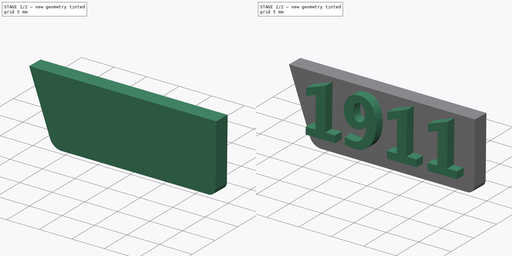
[diagram: build sequence overview — one tinted view per stage of 2, left to right]
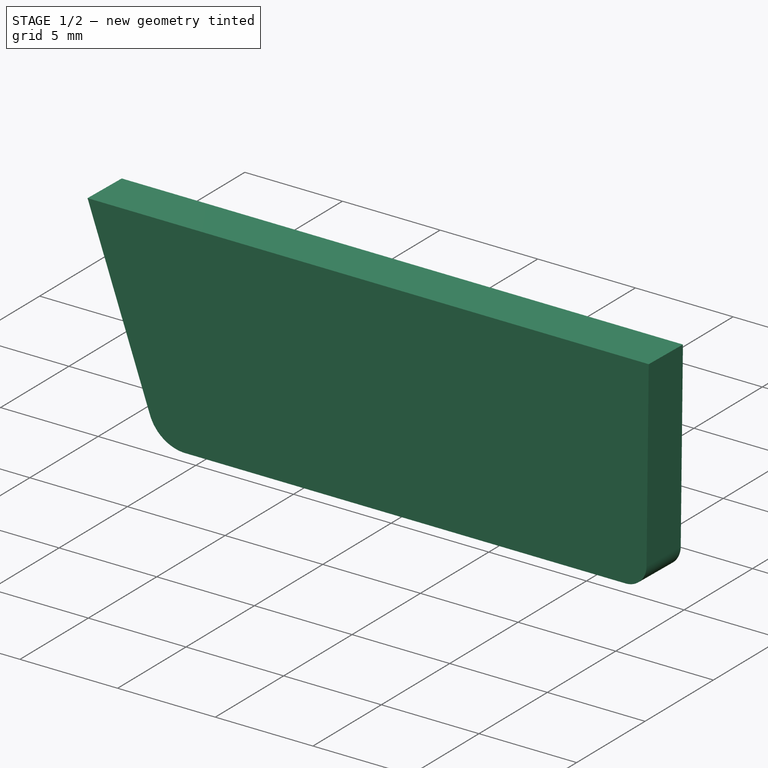
[diagram: stage 1 of 2 — iso view after this stage's code; geometry added in this stage tinted green]
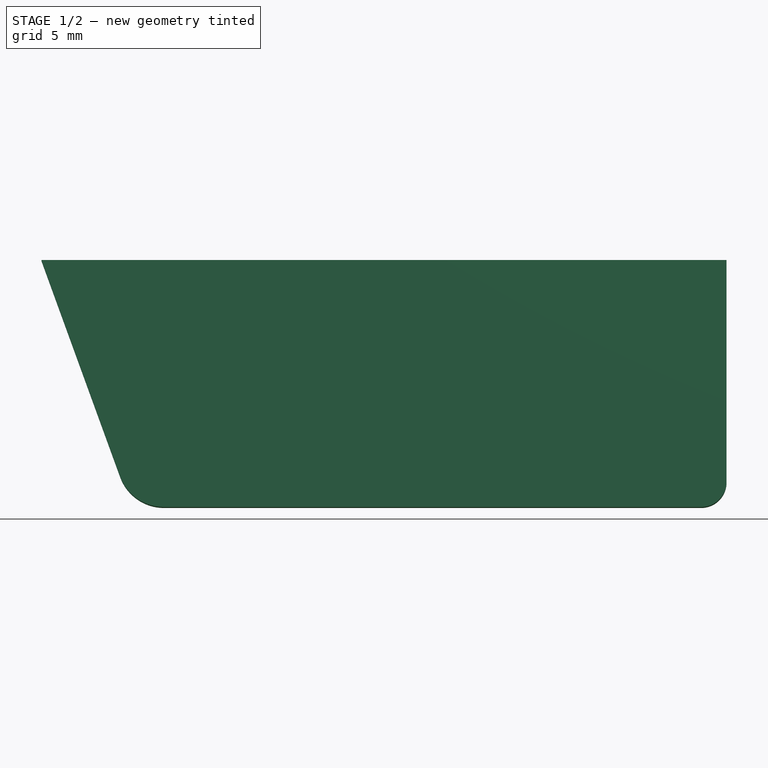
[diagram: stage 1 of 2 — front view after this stage's code; geometry added in this stage tinted green]
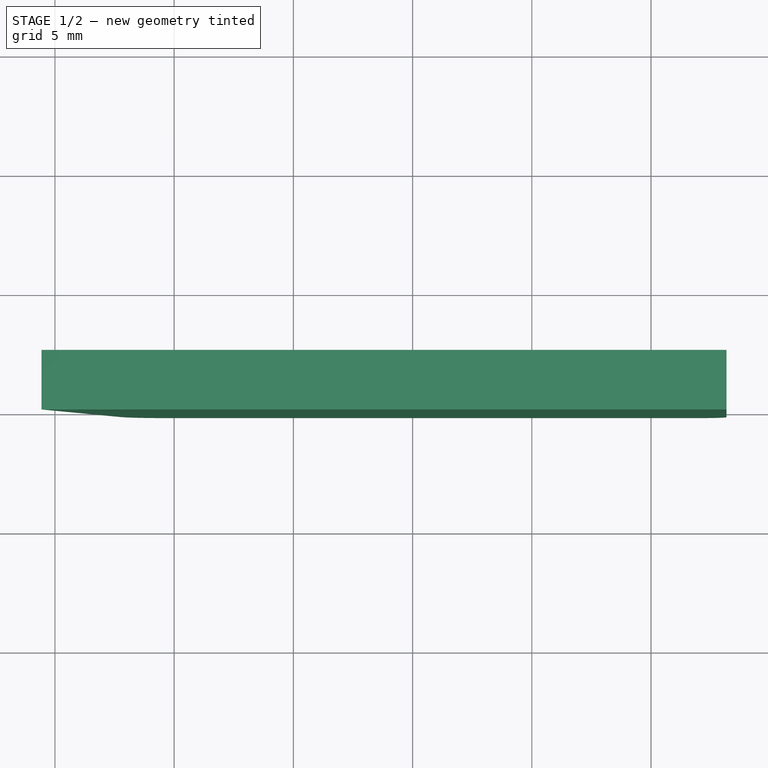
[diagram: stage 1 of 2 — top view after this stage's code; geometry added in this stage tinted green]
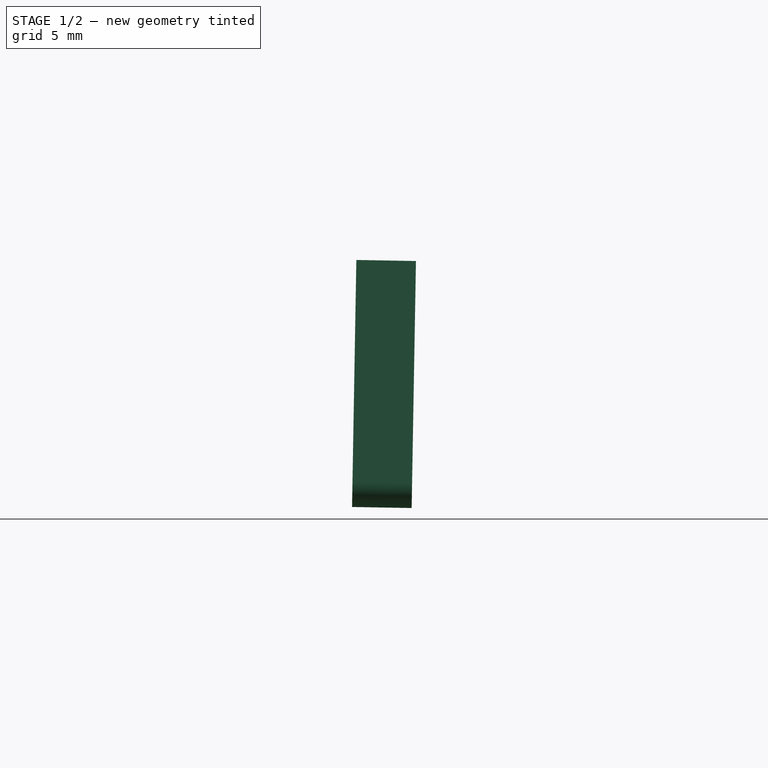
[diagram: stage 1 of 2 — right view after this stage's code; geometry added in this stage tinted green]
FCSTD DOCUMENT  (FreeCAD 0.16R6703 (Git))
Label: Magazine Bumper Pad 15mm - v2 - Corte Dir
License: FreeArt
LicenseURL: http://artlibre.org/licence/lal
objects: Sketcher::SketchObject×2, PartDesign::Pad×2, Part::Part2DObjectPython×1, PartDesign::Pocket×1, Part::MultiFuse×1
note: 10 computed .brp shape members not serialized (recipe doc carries the construction recipe); baked Part::Feature solids carry a one-line shape summary decoded from their .brp

FEATURE [Sketcher::SketchObject] Sketch005
  Placement = pos=(0,6.3,0) rot=(1,0,0;1.55334rad)
  sketch-geometry (6):
    g0: LineSegment StartX=-17.1109 StartY=3.21058 StartZ=0 EndX=13.1674 EndY=3.21058 EndZ=0
    g1: LineSegment StartX=13.1674 StartY=3.21058 StartZ=0 EndX=13.1674 EndY=-10.333 EndZ=0
    g2: LineSegment StartX=12.1055 StartY=-11.3949 StartZ=0 EndX=-10.4303 EndY=-11.3949 EndZ=0
    g3: LineSegment StartX=-12.2617 StartY=-10.1125 StartZ=0 EndX=-17.1109 EndY=3.21058 EndZ=0
    g4: ArcOfCircle CenterX=-10.4303 CenterY=-9.44595 CenterZ=0 NormalX=0 NormalY=0 NormalZ=1 Radius=1.94895 StartAngle=3.49066 EndAngle=4.71239
    g5: ArcOfCircle CenterX=12.1055 CenterY=-10.333 CenterZ=0 NormalX=0 NormalY=0 NormalZ=1 Radius=1.06187 StartAngle=4.71239 EndAngle=6.28319
  constraints (13):
    c: Coincident(g0,g1)
    c: Coincident(g3,g0)
    c: Horizontal(g0)
    c: Horizontal(g2)
    c: Vertical(g1)
    c: Tangent(g3,g4) = 1.5708
    c: Tangent(g2,g4) = 1.5708
    c: Tangent(g2,g5) = 1.5708
    c: Tangent(g1,g5) = 1.5708
    c: Angle(g2,g3) = 1.91986
    c: Distance(g0) = 30.2783
    c: Distance(g2) = 22.5358
    c: Distance(g-1,g2) = 11.3949
FEATURE [PartDesign::Pad] Pad001  label="Corte da Esquerda"
  Length = 2.5
  Length2 = 100
  Midplane = true
  Placement = pos=(0,6.3,0) rot=(1,0,0;1.55334rad)
  Sketch = -> Sketch005
  Type = 0
FEATURE [Sketcher::SketchObject] Sketch
  Placement = pos=(0,5.05019,0.0218155) rot=(1,0,0;1.55334rad)
  Support = -> Pad001 [Face8]
  sketch-geometry (4):
    g0: LineSegment StartX=-19.1705 StartY=6.03861 StartZ=0 EndX=18.4539 EndY=6.03861 EndZ=0
    g1: LineSegment StartX=18.4539 StartY=6.03861 StartZ=0 EndX=18.4539 EndY=-1.03382 EndZ=0
    g2: LineSegment StartX=18.4539 StartY=-1.03382 StartZ=0 EndX=-19.1705 EndY=-1.03382 EndZ=0
    g3: LineSegment StartX=-19.1705 StartY=-1.03382 StartZ=0 EndX=-19.1705 EndY=6.03861 EndZ=0
  constraints (8):
    c: Coincident(g0,g1)
    c: Coincident(g1,g2)
    c: Coincident(g2,g3)
    c: Coincident(g3,g0)
    c: Horizontal(g0)
    c: Horizontal(g2)
    c: Vertical(g1)
    c: Vertical(g3)
FEATURE [PartDesign::Pocket] Pocket
  Length = 5
  Placement = pos=(0,6.3,0) rot=(1,0,0;1.55334rad)
  Sketch = -> Sketch
  Type = 1
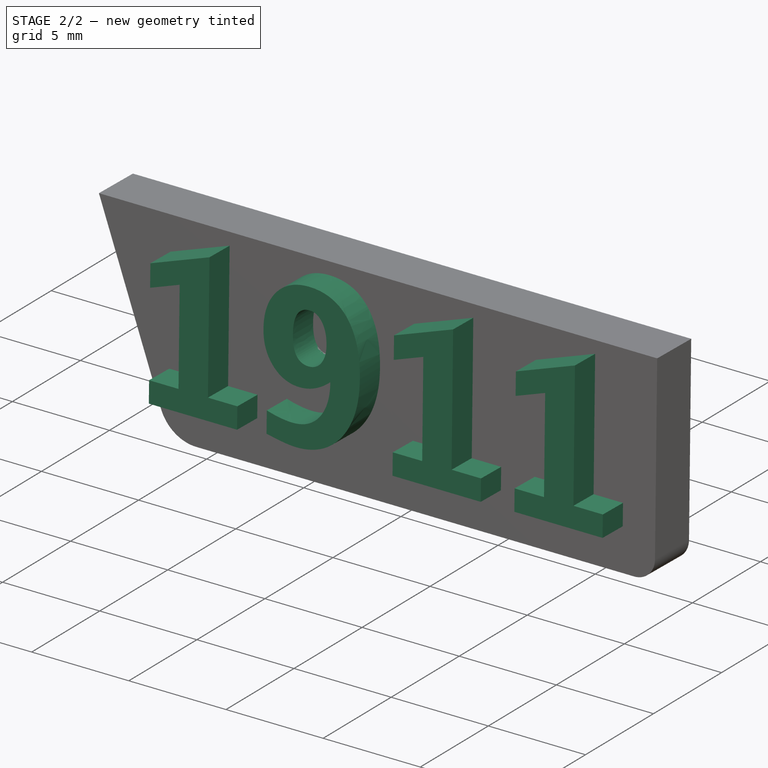
[diagram: stage 2 of 2 — iso view after this stage's code; geometry added in this stage tinted green]
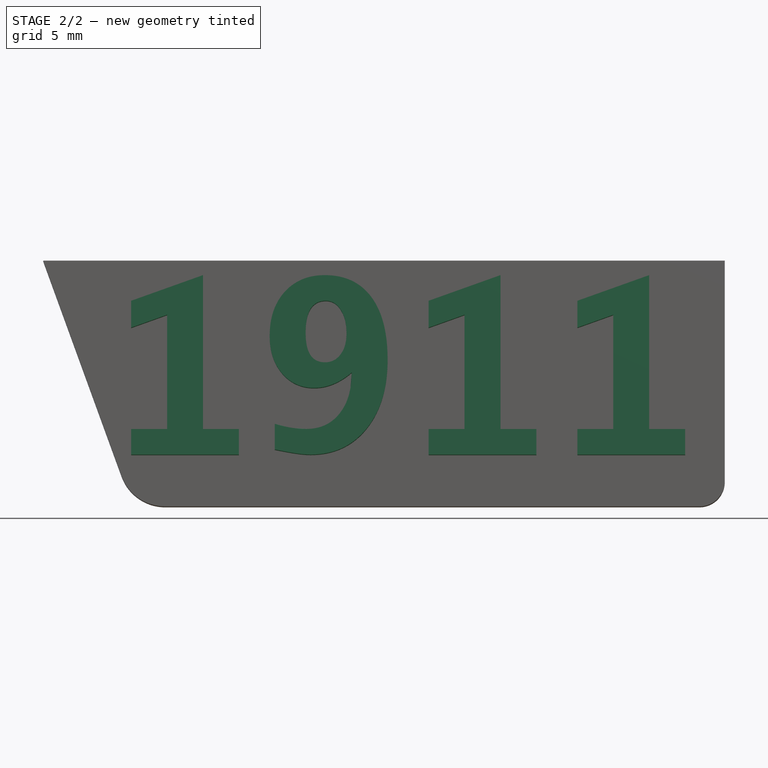
[diagram: stage 2 of 2 — front view after this stage's code; geometry added in this stage tinted green]
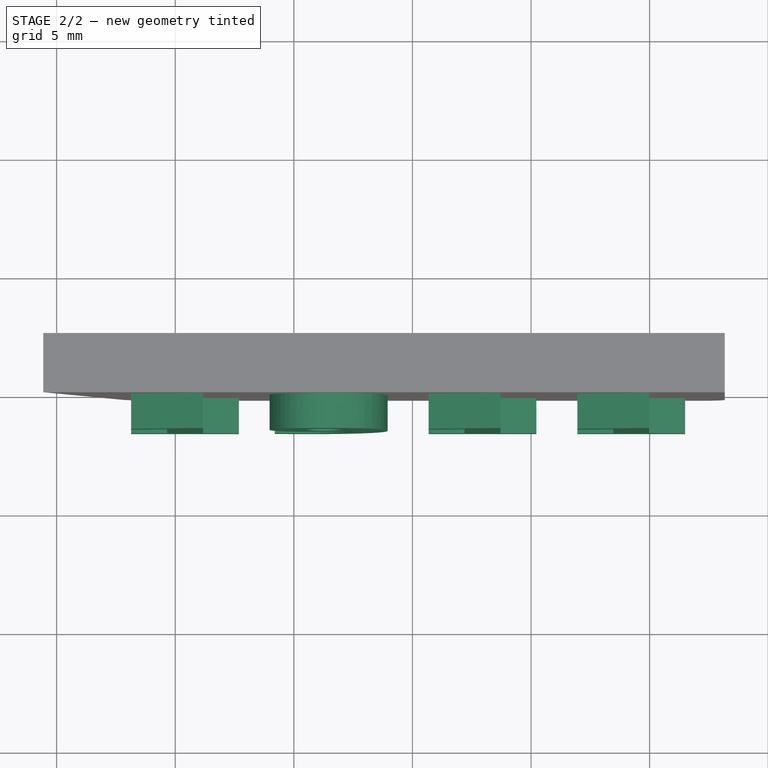
[diagram: stage 2 of 2 — top view after this stage's code; geometry added in this stage tinted green]
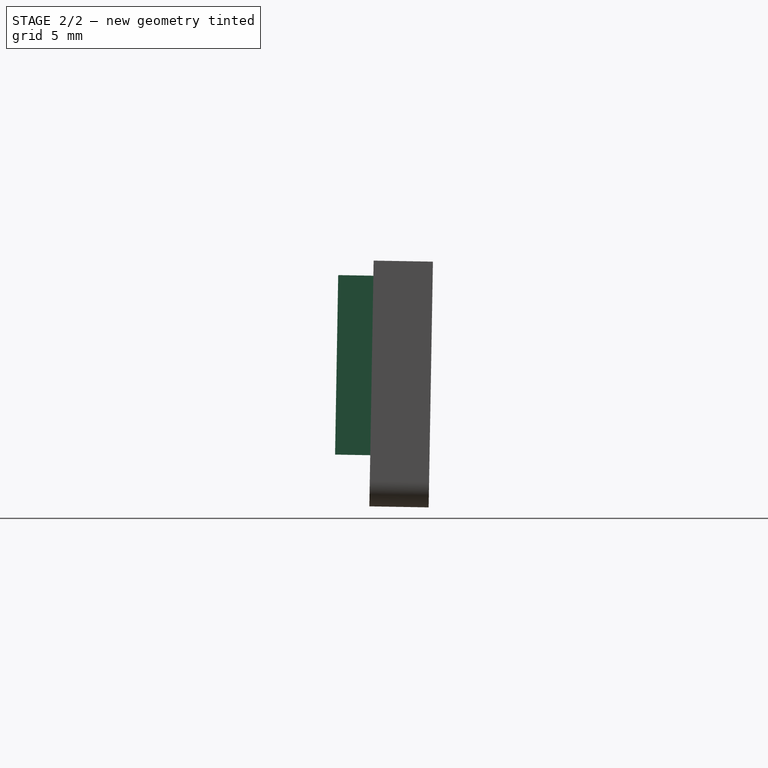
[diagram: stage 2 of 2 — right view after this stage's code; geometry added in this stage tinted green]
FEATURE [Part::Part2DObjectPython] ShapeString  # Draft 2D object (typed FeaturePython)
  FontFile = C:/Program Files/ARIS Express/client/jre/lib/fonts/LucidaTypewriterBold.ttf
  Placement = pos=(-12.9387,4.90641,-9.21561) rot=(1,0,0;1.55334rad)
  Size = 8
  String = 1911
  Tracking = 0
FEATURE [PartDesign::Pad] Pad  label="1911"
  Length = 3
  Length2 = 100
  Midplane = true
  Placement = pos=(-12.9387,4.90641,-9.21561) rot=(1,0,0;1.55334rad)
  Sketch = -> ShapeString
  Type = 0
FEATURE [Part::MultiFuse] Fusion
  Shapes = -> [Pocket,Pad]
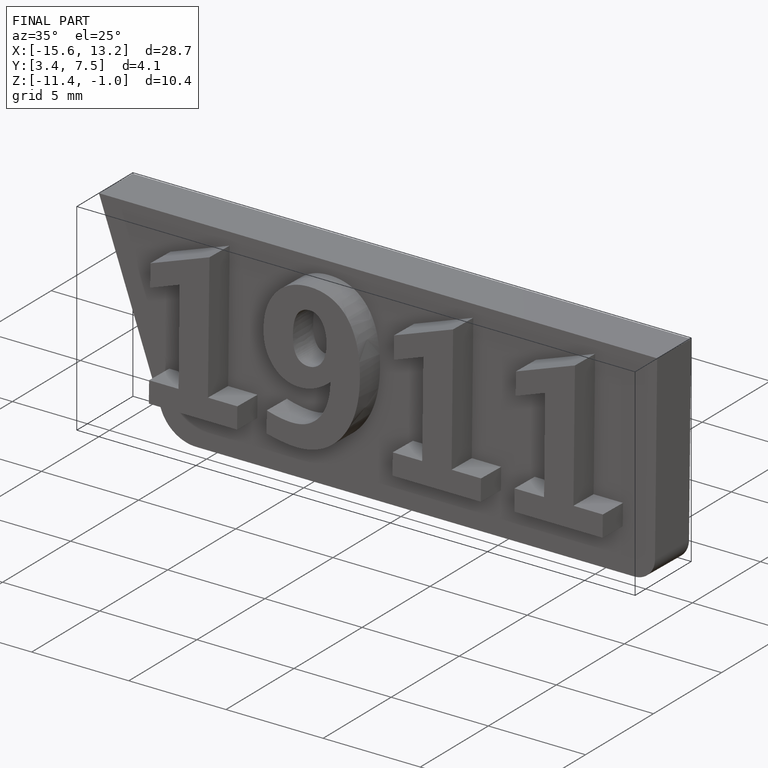
[diagram: finished part — iso view with bounding-box wireframe]
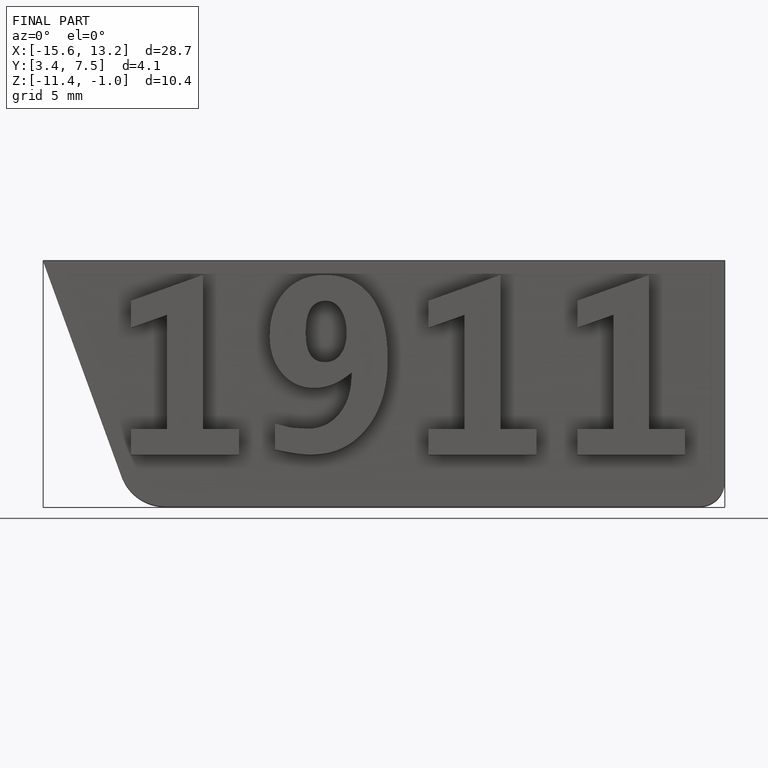
[diagram: finished part — front view with bounding-box wireframe]
